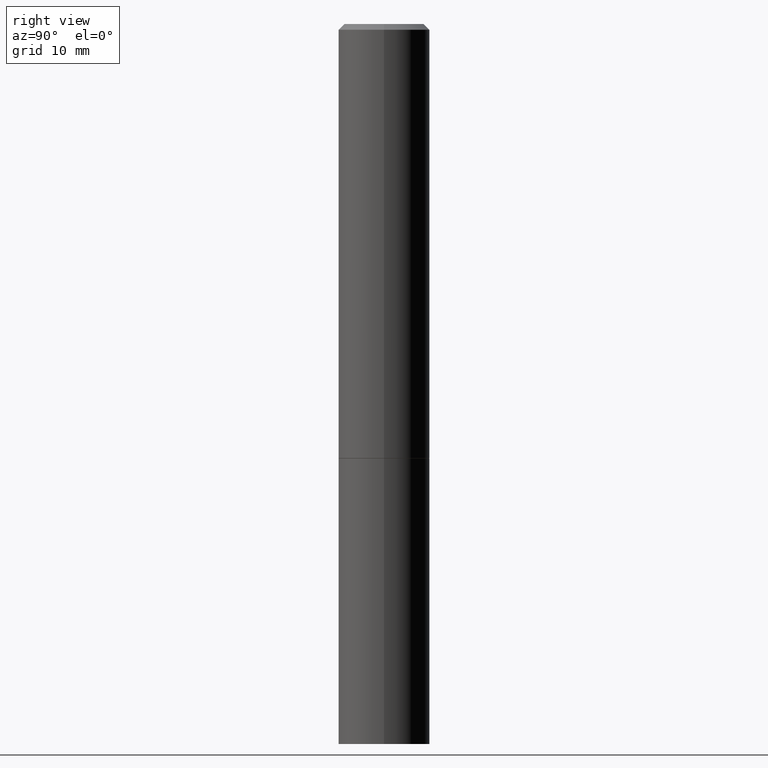
[diagram: clean part render]
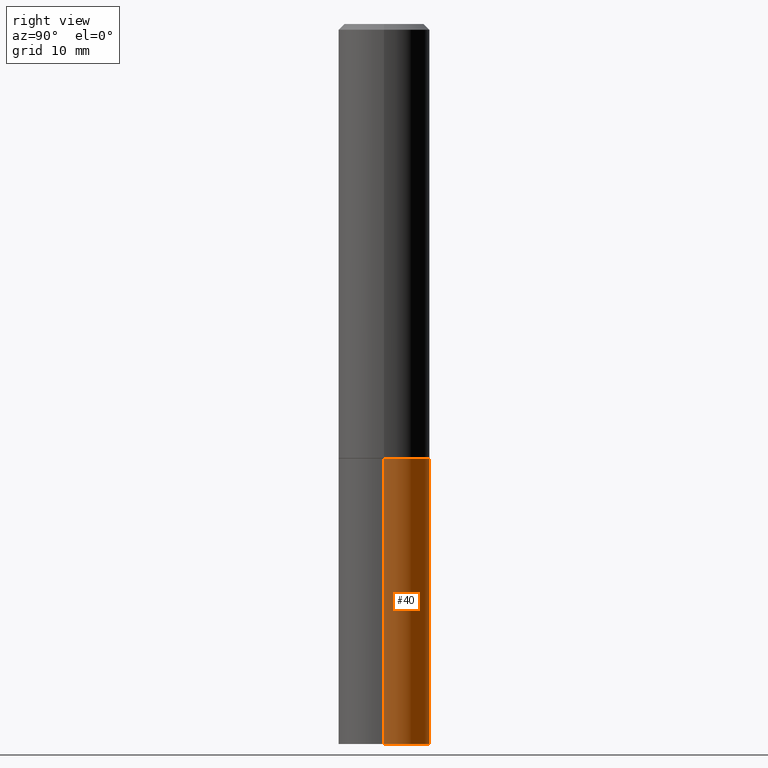
[diagram: same view with one face highlighted and labeled with its STEP entity id]
A machine part, right view. The second image highlights one B-rep face of the part: STEP entity #40.
In plain terms, the highlighted cylindrical surface (partial cylindrical patch) has radius 4.0005 mm, axis along (-0, 0, 1).
Its self-contained STEP definition (entity closure, byte-faithful):
#6 = EDGE_CURVE ( 'NONE', #230, #224, #355, .T. ) ;
#14 = DIRECTION ( 'NONE',  ( 1.000000000000000000, -6.982962677686265922E-15, 4.876176775795935232E-29 ) ) ;
#18 = AXIS2_PLACEMENT_3D ( 'NONE', #125, #301, #14 ) ;
#29 = CARTESIAN_POINT ( 'NONE',  ( -0.1575000000000000011, -5.822483814998842744E-15, -1.496000000000000441 ) ) ;
#34 = ORIENTED_EDGE ( 'NONE', *, *, #340, .F. ) ;
#36 = ORIENTED_EDGE ( 'NONE', *, *, #298, .F. ) ;
#40 = ADVANCED_FACE ( 'NONE', ( #187 ), #327, .T. ) ;
#44 = VECTOR ( 'NONE', #237, 39.37007874015748143 ) ;
#51 = CARTESIAN_POINT ( 'NONE',  ( 0.1575000000000000011, -6.323072704644934417E-15, -1.496000000000000441 ) ) ;
#55 = EDGE_LOOP ( 'NONE', ( #319, #253, #34, #36 ) ) ;
#77 = EDGE_CURVE ( 'NONE', #224, #272, #184, .T. ) ;
#79 = DIRECTION ( 'NONE',  ( -2.445468806185136877E-29, 3.491481338843145188E-15, 1.000000000000000000 ) ) ;
#82 = CARTESIAN_POINT ( 'NONE',  ( 3.658421334052965286E-29, -5.223256082909346937E-15, -1.496000000000000441 ) ) ;
#85 = VECTOR ( 'NONE', #79, 39.37007874015748143 ) ;
#111 = DIRECTION ( 'NONE',  ( 1.000000000000000000, -6.982962677686268288E-15, 0.000000000000000000 ) ) ;
#112 = DIRECTION ( 'NONE',  ( -2.445468806185136597E-29, 3.491481338843145583E-15, 1.000000000000000000 ) ) ;
#124 = CARTESIAN_POINT ( 'NONE',  ( -0.1575000000000000011, 1.119104808822157801E-15, -7.747322767151475583E-30 ) ) ;
#125 = CARTESIAN_POINT ( 'NONE',  ( 0.000000000000000000, 0.000000000000000000, 0.000000000000000000 ) ) ;
#138 = CIRCLE ( 'NONE', #179, 0.1575000000000000011 ) ;
#140 = CARTESIAN_POINT ( 'NONE',  ( 6.065496279980994755E-29, -8.659921164732655335E-15, -2.480300000000000171 ) ) ;
#172 = DIRECTION ( 'NONE',  ( 1.000000000000000000, -6.982962677686261977E-15, 0.000000000000000000 ) ) ;
#179 = AXIS2_PLACEMENT_3D ( 'NONE', #82, #308, #111 ) ;
#184 = LINE ( 'NONE', #124, #44 ) ;
#187 = FACE_OUTER_BOUND ( 'NONE', #55, .T. ) ;
#209 = AXIS2_PLACEMENT_3D ( 'NONE', #140, #112, #172 ) ;
#224 = VERTEX_POINT ( 'NONE', #283 ) ;
#230 = VERTEX_POINT ( 'NONE', #339 ) ;
#232 = VERTEX_POINT ( 'NONE', #51 ) ;
#237 = DIRECTION ( 'NONE',  ( -2.445468806185136877E-29, 3.491481338843145188E-15, 1.000000000000000000 ) ) ;
#253 = ORIENTED_EDGE ( 'NONE', *, *, #77, .T. ) ;
#272 = VERTEX_POINT ( 'NONE', #29 ) ;
#283 = CARTESIAN_POINT ( 'NONE',  ( -0.1575000000000000011, -5.822483814998842744E-15, -2.480300000000000171 ) ) ;
#298 = EDGE_CURVE ( 'NONE', #230, #232, #333, .T. ) ;
#301 = DIRECTION ( 'NONE',  ( -2.445468806185136597E-29, 3.491481338843145583E-15, 1.000000000000000000 ) ) ;
#308 = DIRECTION ( 'NONE',  ( -2.445468806185136597E-29, 3.491481338843145583E-15, 1.000000000000000000 ) ) ;
#319 = ORIENTED_EDGE ( 'NONE', *, *, #6, .T. ) ;
#327 = CYLINDRICAL_SURFACE ( 'NONE', #18, 0.1575000000000000011 ) ;
#333 = LINE ( 'NONE', #343, #85 ) ;
#339 = CARTESIAN_POINT ( 'NONE',  ( 0.1575000000000000011, -9.759737786468242027E-15, -2.480300000000000171 ) ) ;
#340 = EDGE_CURVE ( 'NONE', #232, #272, #138, .T. ) ;
#343 = CARTESIAN_POINT ( 'NONE',  ( 0.1575000000000000011, -1.099816621735586889E-15, 7.679978421878598033E-30 ) ) ;
#355 = CIRCLE ( 'NONE', #209, 0.1575000000000000011 ) ;